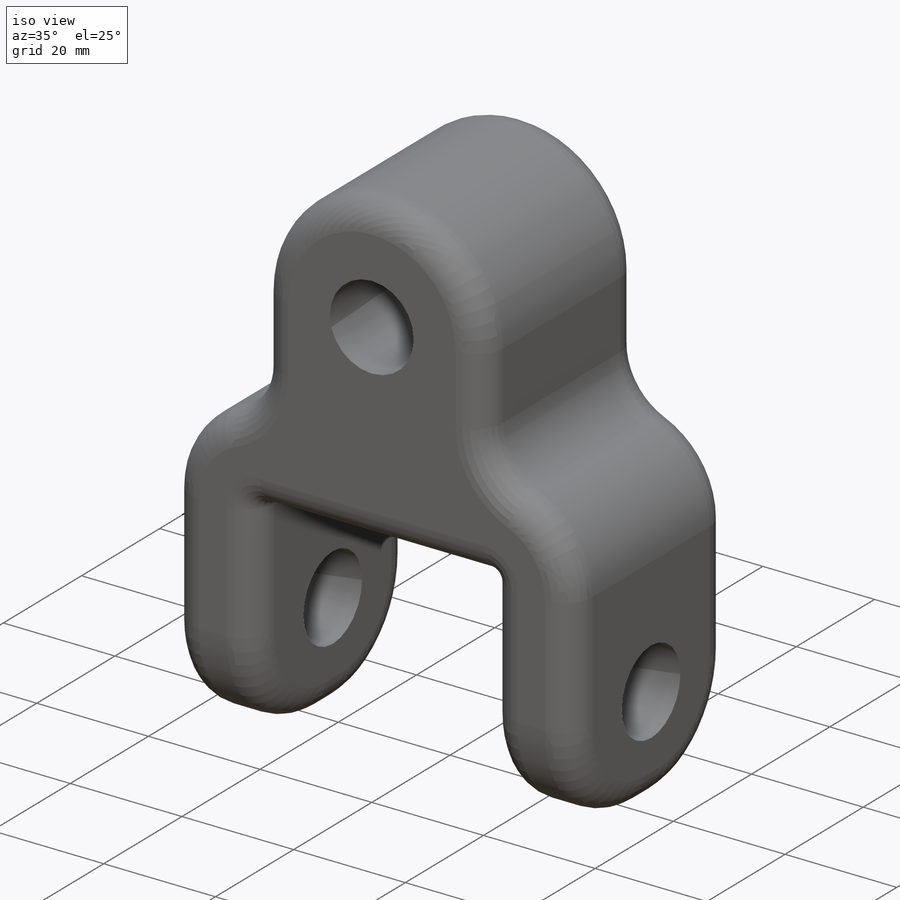
[diagram: iso view]
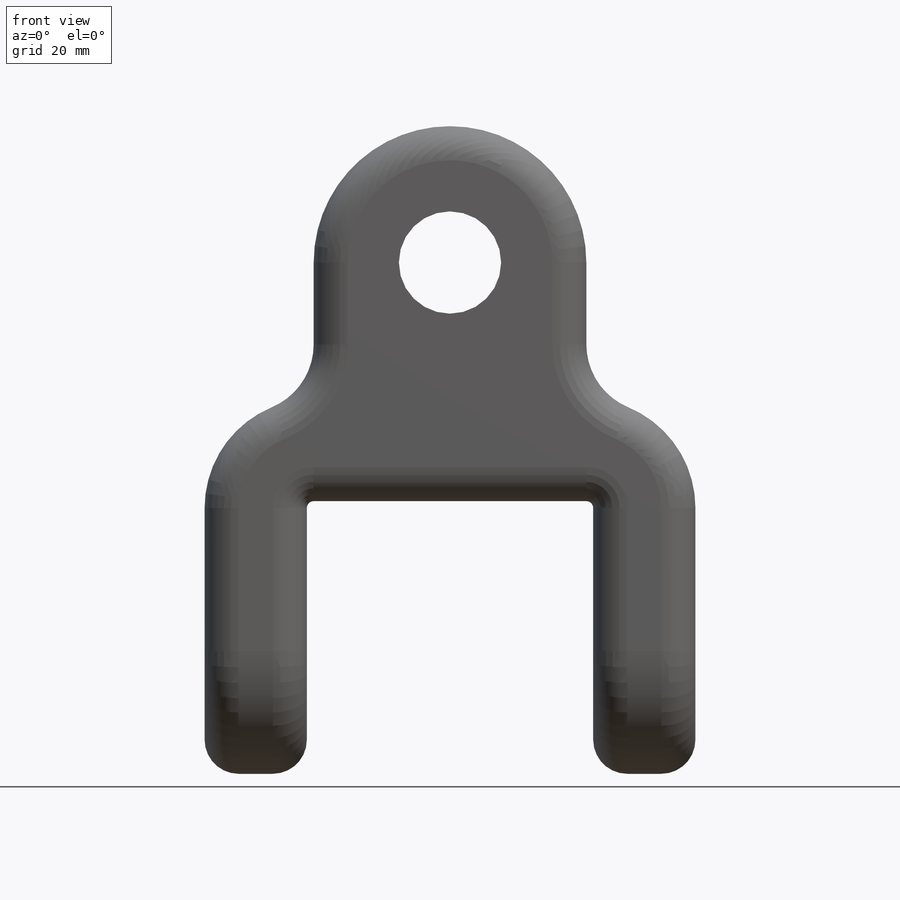
[diagram: front view]
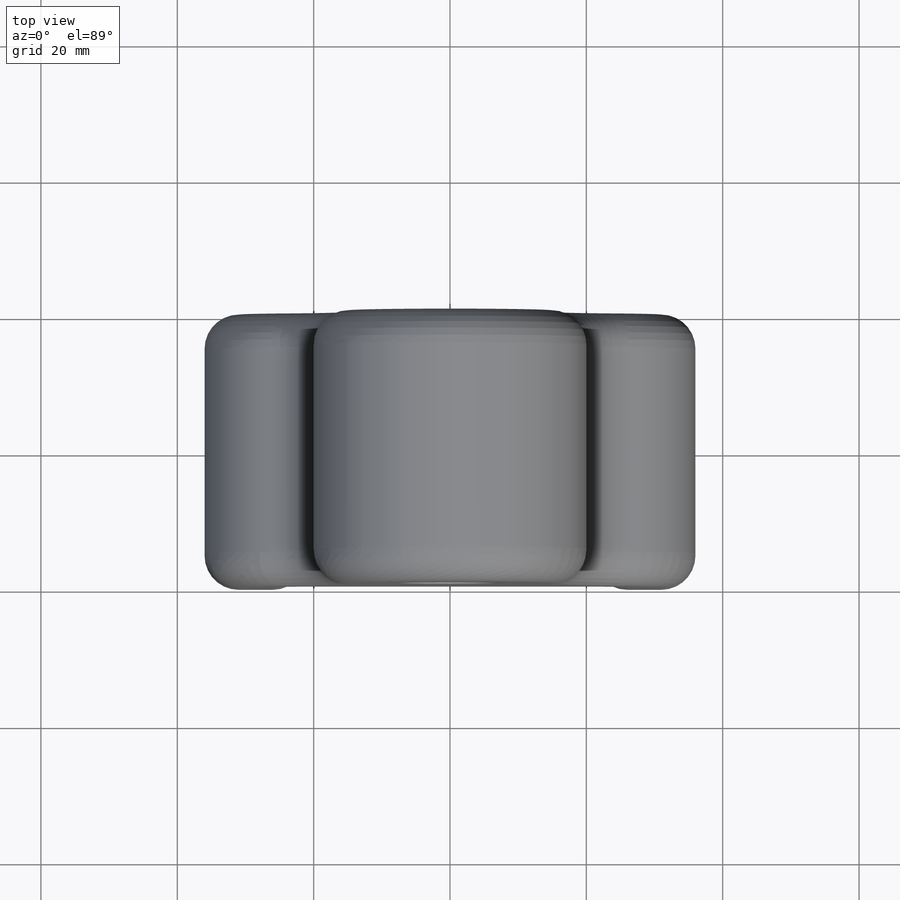
[diagram: top view]
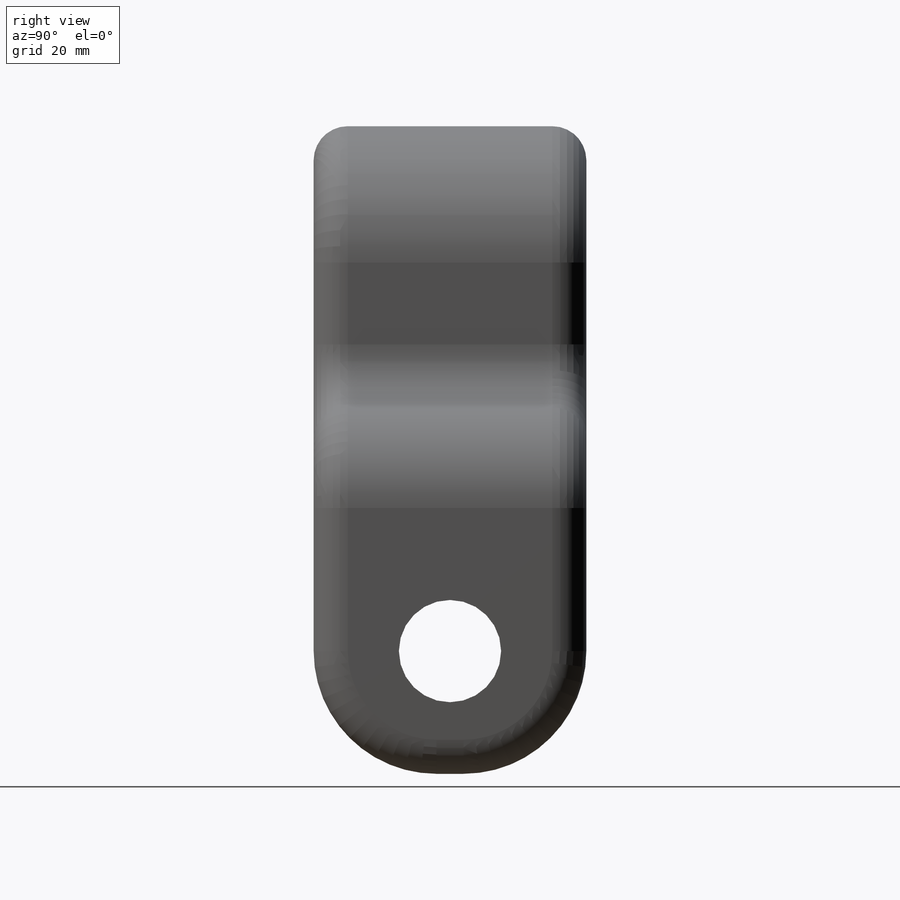
[diagram: right view]
SOLIDWORKS PART (.sldprt)
format: sldprt  version: not decoded by parser v0  size: 295,936 bytes
history: native  units: mm
features: sketch x3, fillet x3, cut_extrude x2, material x1, plane x1, extrude x1 (+13 scaffold rows collapsed)
feature tree (24):
  scaffold x13  (default folders/planes/origin — collapsed)
  material  "Material <not specified>"
  plane  "Plane2"
  sketch  "Sketch7"  dims[D4=20.0mm D9=10.0mm D10=16.0mm D1=72.0mm D2=42.0mm D3=75.0mm D5=63.0mm D6=30.0mm D7=20.0mm D8=39.0mm D11=40.0mm]
  extrude  "Boss-Extrude2"  Depth=40mm
  fillet  "Fillet4"  Radius=18mm
  sketch  "Sketch8"  dims[D1=15.0mm]
  cut_extrude  "Cut-Extrude3"  [1 undecoded]
  sketch  "Sketch9"  dims[D1=15.0mm]
  cut_extrude  "Cut-Extrude4"  [1 undecoded]
  fillet  "Fillet5"  Radius=1mm
  fillet  "Fillet6"  Radius=5mm
decode coverage: 7 of 9 modeling features carry decoded parameters
note: 2 parameter values undecoded
note: suppression state not decoded; provenance and decode notes live in map.json
